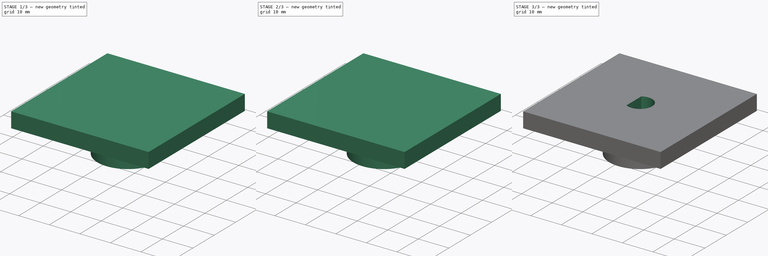
[diagram: build sequence overview — one tinted view per stage of 3, left to right]
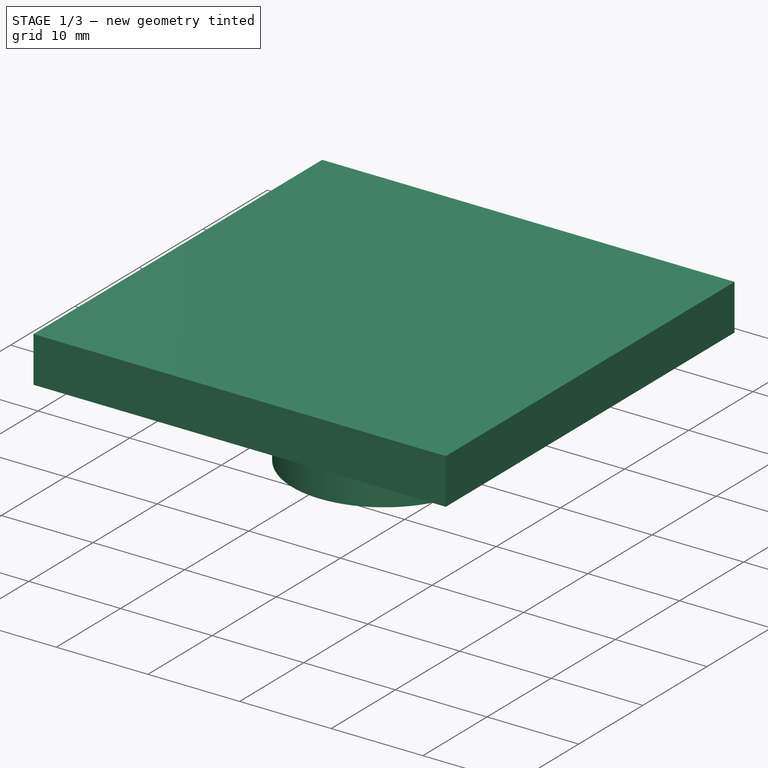
[diagram: stage 1 of 3 — iso view after this stage's code; geometry added in this stage tinted green]
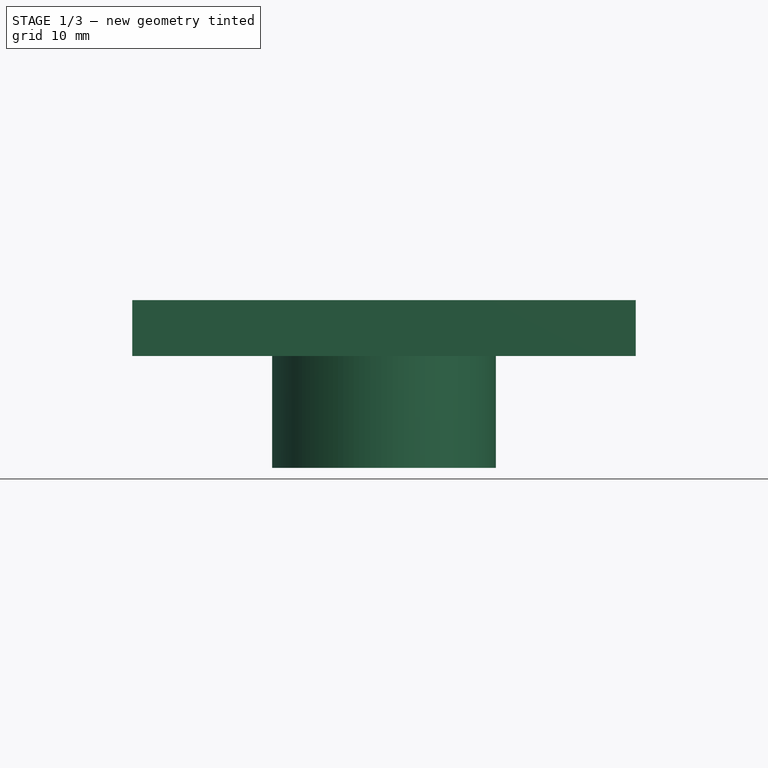
[diagram: stage 1 of 3 — front view after this stage's code; geometry added in this stage tinted green]
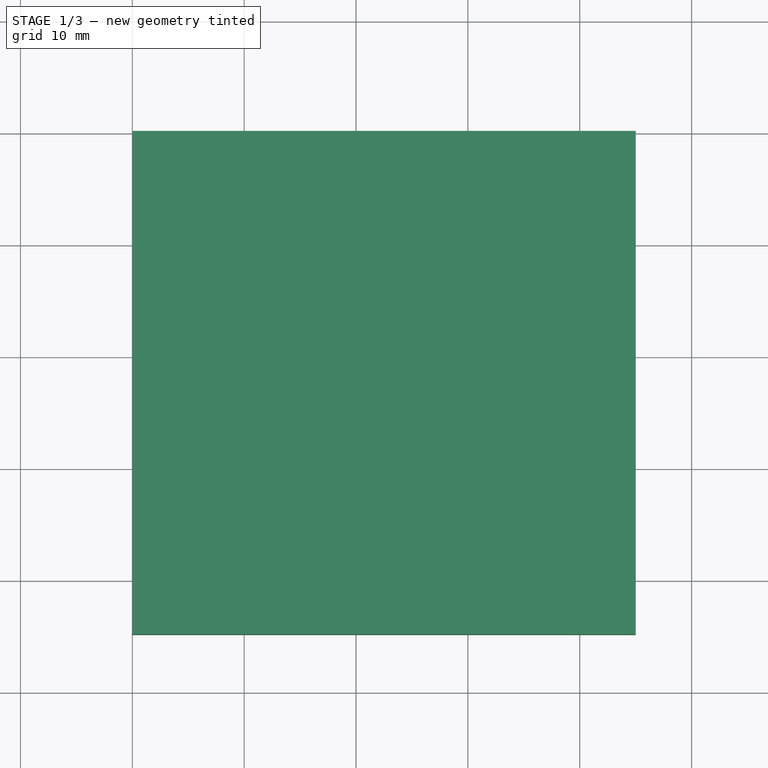
[diagram: stage 1 of 3 — top view after this stage's code; geometry added in this stage tinted green]
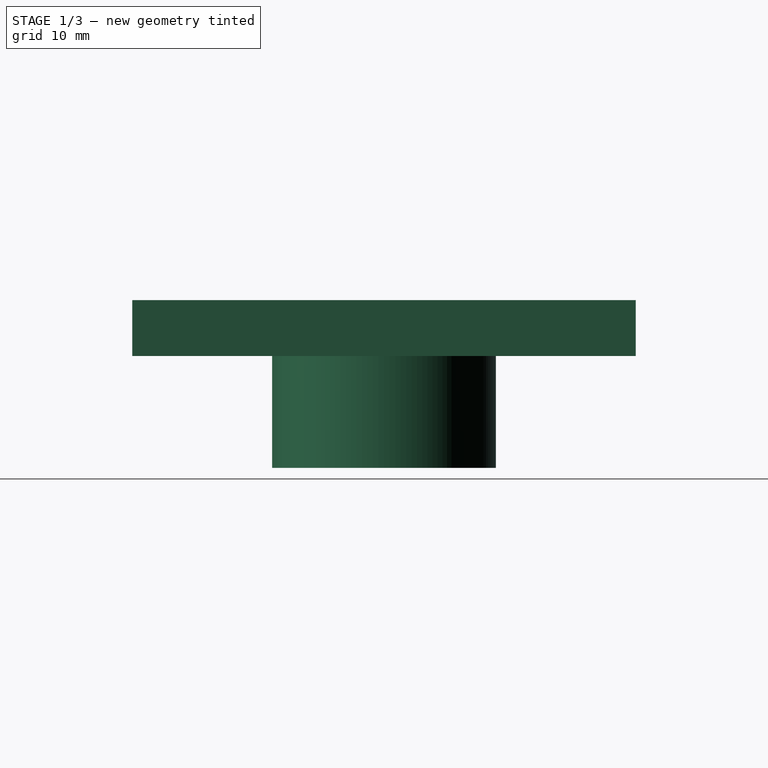
[diagram: stage 1 of 3 — right view after this stage's code; geometry added in this stage tinted green]
FCSTD DOCUMENT  (FreeCAD 0.19R24291 (Git))
Label: hlinikovy_profil_verze_2
License: All rights reserved
LicenseURL: http://en.wikipedia.org/wiki/All_rights_reserved
objects: Sketcher::SketchObject×5, Part::Extrusion×2, PartDesign::Pad×1, PartDesign::ShapeBinder×1, PartDesign::Body×1, Part::Fuse×1, Part::Cut×1
note: 13 computed .brp shape members not serialized (recipe doc carries the construction recipe); baked Part::Feature solids carry a one-line shape summary decoded from their .brp

FEATURE [Sketcher::SketchObject] Sketch  label="Zakladna"
  FullyConstrained = true
  MapMode = 5
  Support = -> [XY_Plane]
  sketch-geometry (4):
    g0: LineSegment StartX=0 StartY=0 StartZ=0 EndX=45 EndY=0 EndZ=0
    g1: LineSegment StartX=45 StartY=0 StartZ=0 EndX=45 EndY=-45 EndZ=0
    g2: LineSegment StartX=45 StartY=-45 StartZ=0 EndX=0 EndY=-45 EndZ=0
    g3: LineSegment StartX=0 StartY=-45 StartZ=0 EndX=0 EndY=0 EndZ=0
  constraints (11):
    c: Coincident(g0,g1)
    c: Coincident(g1,g2)
    c: Coincident(g2,g3)
    c: Coincident(g3,g0)
    c: Horizontal(g0)
    c: Horizontal(g2)
    c: Vertical(g1)
    c: Vertical(g3)
    c: Coincident(g0,g-1)
    c: DistanceX(g0,g0) = 45
    c: DistanceY(g1,g1) = 45
FEATURE [PartDesign::Pad] Pad
  Direction = (1,1,1)
  Length = 5
  Length2 = 100
  Profile = -> Sketch
  Type = 0
FEATURE [Sketcher::SketchObject] Sketch001
  ExternalGeometry = -> [Pad]
  FullyConstrained = true
  MapMode = 5
  Placement = pos=(0,0,5) rot=(0,0,1;0rad)
  Support = -> [Pad]
  sketch-geometry (22):
    g0: LineSegment StartX=4 StartY=-2 StartZ=0 EndX=7.5 EndY=-2 EndZ=0
    g1: LineSegment StartX=7.5 StartY=-2 StartZ=0 EndX=7.5 EndY=-7.5 EndZ=0
    g2: LineSegment StartX=7.5 StartY=-7.5 StartZ=0 EndX=2 EndY=-7.5 EndZ=0
    g3: LineSegment StartX=2 StartY=-7.5 StartZ=0 EndX=2 EndY=-4 EndZ=0
    g4: ArcOfCircle CenterX=4 CenterY=-4 CenterZ=0 NormalX=0 NormalY=0 NormalZ=1 AngleXU=0 Radius=2 StartAngle=1.5708 EndAngle=3.14159
    g5: LineSegment StartX=20 StartY=0 StartZ=0 EndX=20 EndY=-45 EndZ=0
    g6: LineSegment StartX=43 StartY=-7.5 StartZ=0 EndX=43 EndY=-4 EndZ=0
    g7: ArcOfCircle CenterX=41 CenterY=-4 CenterZ=0 NormalX=0 NormalY=0 NormalZ=1 AngleXU=0 Radius=2 StartAngle=0 EndAngle=1.5708
    g8: LineSegment StartX=37.5 StartY=-2 StartZ=0 EndX=37.5 EndY=-7.5 EndZ=0
    g9: LineSegment StartX=37.5 StartY=-7.5 StartZ=0 EndX=43 EndY=-7.5 EndZ=0
    g10: LineSegment StartX=41 StartY=-2 StartZ=0 EndX=37.5 EndY=-2 EndZ=0
    g11: LineSegment StartX=0 StartY=-20 StartZ=0 EndX=45 EndY=-20 EndZ=0
    g12: LineSegment StartX=7.5 StartY=-37.5 StartZ=0 EndX=2 EndY=-37.5 EndZ=0
    g13: LineSegment StartX=2 StartY=-37.5 StartZ=0 EndX=2 EndY=-41 EndZ=0
    g14: ArcOfCircle CenterX=4 CenterY=-41 CenterZ=0 NormalX=0 NormalY=0 NormalZ=1 AngleXU=0 Radius=2 StartAngle=3.14159 EndAngle=4.71239
    g15: LineSegment StartX=7.5 StartY=-43 StartZ=0 EndX=7.5 EndY=-37.5 EndZ=0
    g16: LineSegment StartX=4 StartY=-43 StartZ=0 EndX=7.5 EndY=-43 EndZ=0
    g17: LineSegment StartX=37.5 StartY=-43 StartZ=0 EndX=37.5 EndY=-37.5 EndZ=0
    g18: LineSegment StartX=41 StartY=-43 StartZ=0 EndX=37.5 EndY=-43 EndZ=0
    g19: LineSegment StartX=37.5 StartY=-37.5 StartZ=0 EndX=43 EndY=-37.5 EndZ=0
    g20: ArcOfCircle CenterX=41 CenterY=-41 CenterZ=0 NormalX=0 NormalY=0 NormalZ=1 AngleXU=0 Radius=2 StartAngle=4.71239 EndAngle=6.28319
    g21: LineSegment StartX=43 StartY=-37.5 StartZ=0 EndX=43 EndY=-41 EndZ=0
  constraints (64):
    c: Coincident(g0,g1)
    c: Coincident(g1,g2)
    c: Coincident(g2,g3)
    c: Horizontal(g0)
    c: Horizontal(g2)
    c: Vertical(g1)
    c: Vertical(g3)
    c: DistanceY(g1,g1) = 5.5
    c: Tangent(g0,g4) = 1.5708
    c: Tangent(g3,g4) = 1.5708
    c: Radius(g4) = 2
    c: DistanceX(g-1,g3) = 2
    c: DistanceY(g0,g-1) = 2
    c: DistanceX(g2,g2) = 5.5
    c: Vertical(g5)
    c: PointOnObject(g5,g-1)
    c: PointOnObject(g5,g-3)
    c: DistanceX(g-3,g5) = 20
    c: Coincident(g10,g8)
    c: Coincident(g8,g9)
    c: Coincident(g9,g6)
    c: Horizontal(g10)
    c: Horizontal(g9)
    c: Vertical(g8)
    c: Vertical(g6)
    c: Tangent(g10,g7) = -1.5708
    c: Tangent(g6,g7) = -1.5708
    c: Radius(g7) = 2
    c: DistanceX(g6,g-3) = 2
    c: DistanceY(g8,g5) = 2
    c: DistanceY(g8,g8) = 5.5
    c: DistanceX(g9,g9) = 5.5
    c: PointOnObject(g11,g-2)
    c: Horizontal(g11)
    c: PointOnObject(g11,g-4)
    c: DistanceY(g11,g-4) = 20
    c: Coincident(g16,g15)
    c: Coincident(g15,g12)
    c: Coincident(g12,g13)
    c: Horizontal(g16)
    c: Horizontal(g12)
    c: Vertical(g15)
    c: Vertical(g13)
    c: Tangent(g16,g14) = -1.5708
    c: Tangent(g13,g14) = -1.5708
    c: Radius(g14) = 2
    c: Coincident(g18,g17)
    c: Coincident(g17,g19)
    c: Coincident(g19,g21)
    c: Horizontal(g18)
    c: Horizontal(g19)
    c: Vertical(g17)
    c: Vertical(g21)
    c: Tangent(g18,g20) = 1.5708
    c: Tangent(g21,g20) = 1.5708
    c: Radius(g20) = 2
    c: DistanceX(g12,g12) = 5.5
    c: DistanceY(g15,g15) = 5.5
    c: DistanceY(g-3,g15) = 2
    c: DistanceX(g-3,g12) = 2
    c: DistanceX(g19,g19) = 5.5
    c: DistanceY(g17,g17) = 5.5
    c: DistanceX(g19,g-4) = 2
    c: DistanceY(g-4,g18) = 2
FEATURE [Sketcher::SketchObject] Sketch003  label="Objimka"
  FullyConstrained = true
  MapMode = 5
  Placement = pos=(0,0,0) rot=(1,0,0;3.14159rad)
  sketch-geometry (1):
    g0: Circle CenterX=22.5 CenterY=22.5 CenterZ=0 NormalX=0 NormalY=0 NormalZ=1 AngleXU=0 Radius=10
  constraints (3):
    c: DistanceX(g-1,g0) = 22.5
    c: DistanceY(g-1,g0) = 22.5
    c: Radius(g0) = 10
FEATURE [Sketcher::SketchObject] Sketch007  label="Dira_1"
  FullyConstrained = true
  MapMode = 5
  Placement = pos=(0,0,5) rot=(0,0,1;0rad)
  sketch-geometry (1):
    g0: Circle CenterX=22.5 CenterY=-22.5 CenterZ=0 NormalX=0 NormalY=0 NormalZ=1 AngleXU=0 Radius=4
  constraints (3):
    c: Radius(g0) = 4
    c: DistanceY(g0,g-1) = 22.5
    c: DistanceX(g-1,g0) = 22.5
FEATURE [Part::Extrusion] Extrude  label="Valec"
  Base = -> Sketch003
  Dir = (0,0,-1)
  DirMode = 2
  FaceMakerClass = Part::FaceMakerBullseye
  LengthFwd = 10
  LengthRev = 0
  Solid = true
  Symmetric = false
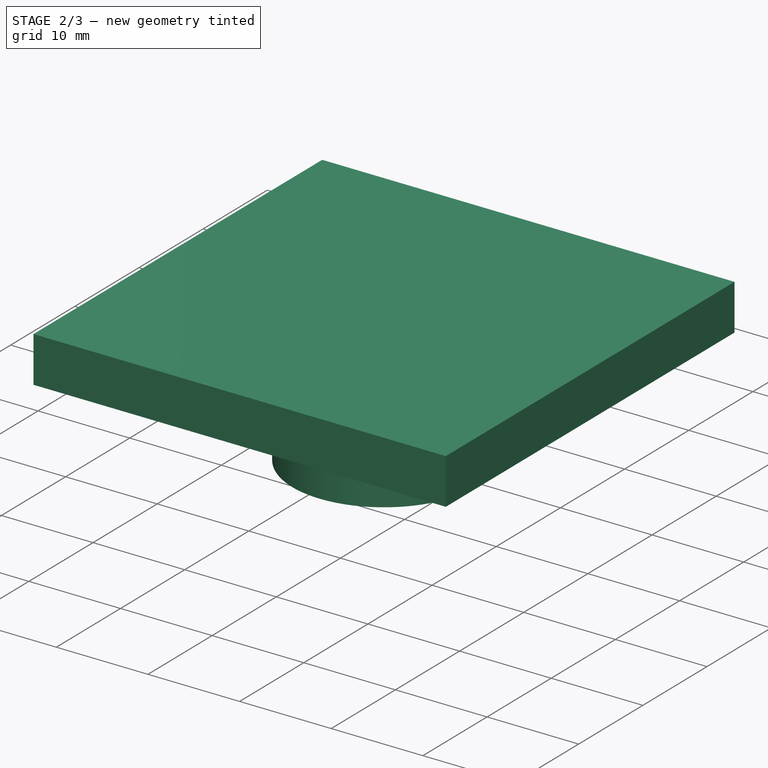
[diagram: stage 2 of 3 — iso view after this stage's code; geometry added in this stage tinted green]
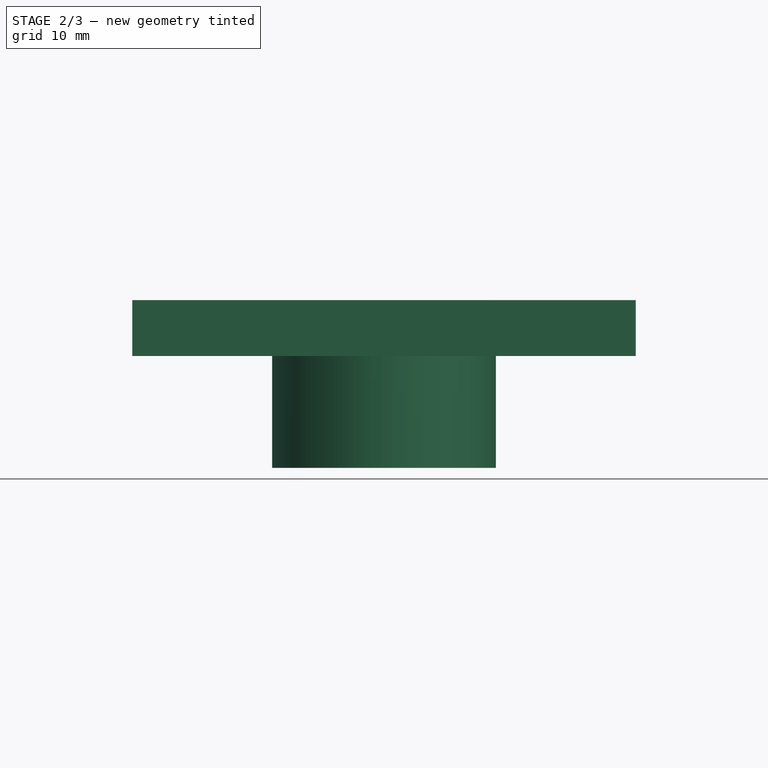
[diagram: stage 2 of 3 — front view after this stage's code; geometry added in this stage tinted green]
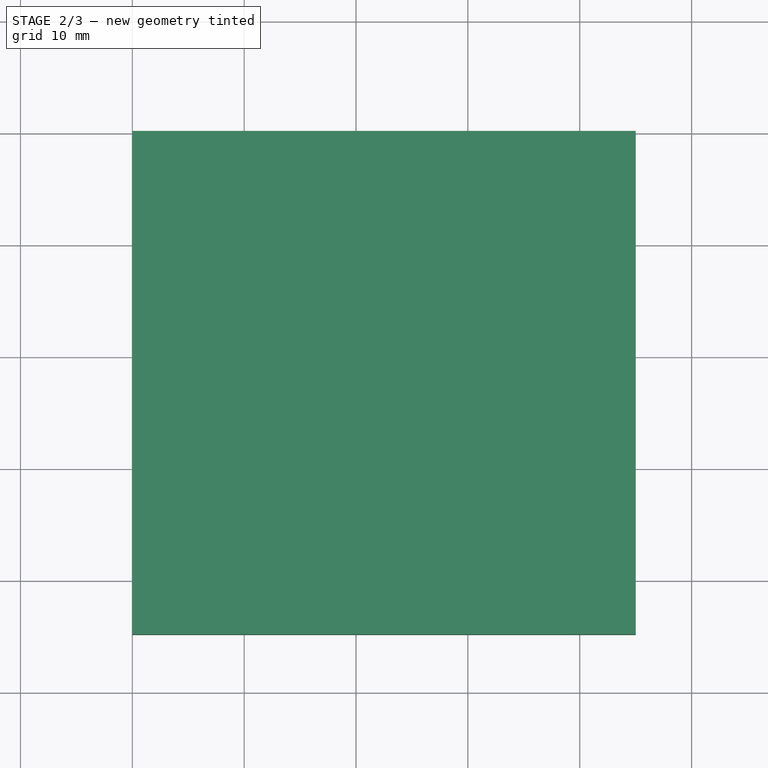
[diagram: stage 2 of 3 — top view after this stage's code; geometry added in this stage tinted green]
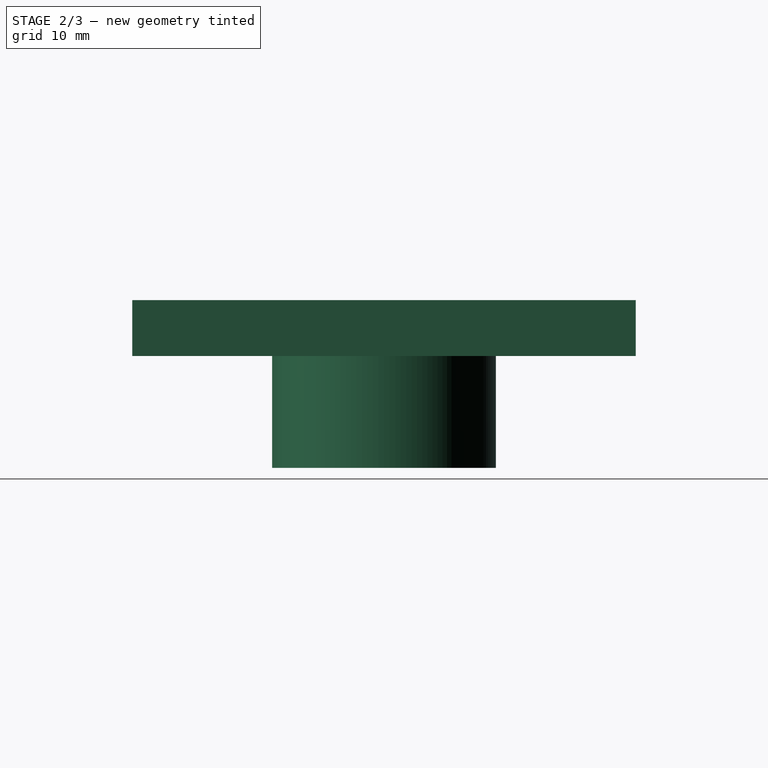
[diagram: stage 2 of 3 — right view after this stage's code; geometry added in this stage tinted green]
FEATURE [Part::Fuse] Fusion
  Base = -> Body
  Tool = -> Extrude
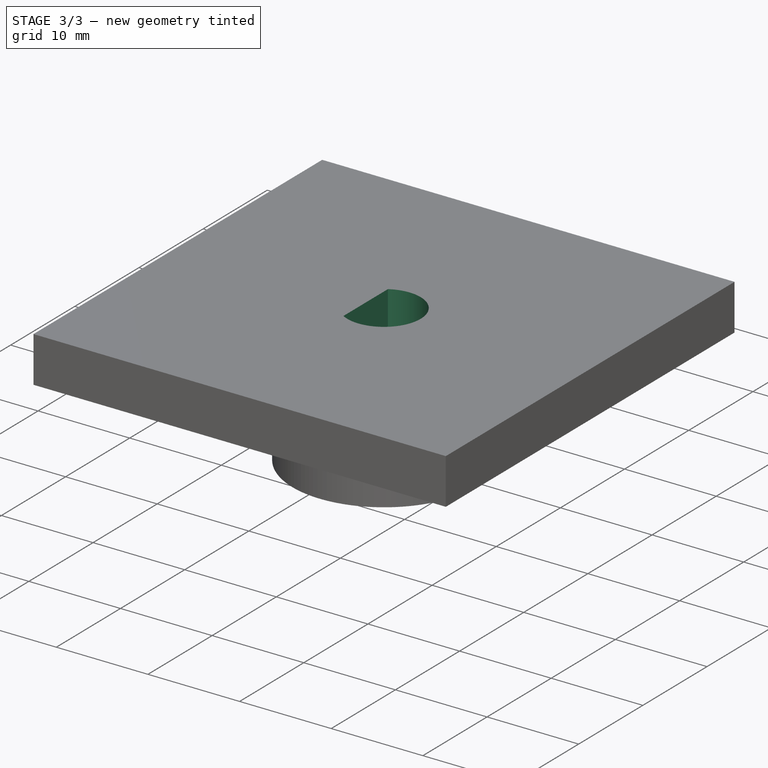
[diagram: stage 3 of 3 — iso view after this stage's code; geometry added in this stage tinted green]
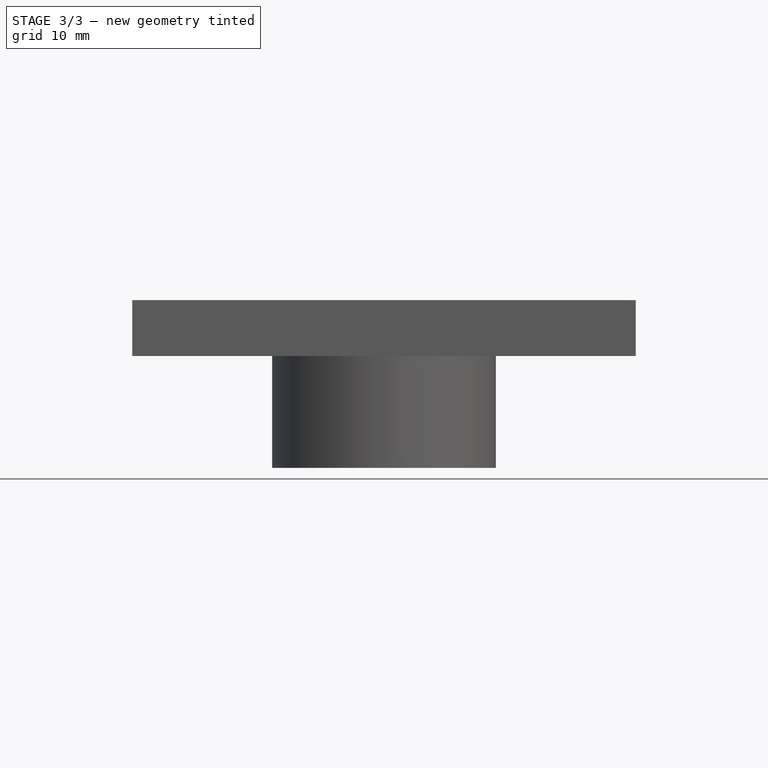
[diagram: stage 3 of 3 — front view after this stage's code; geometry added in this stage tinted green]
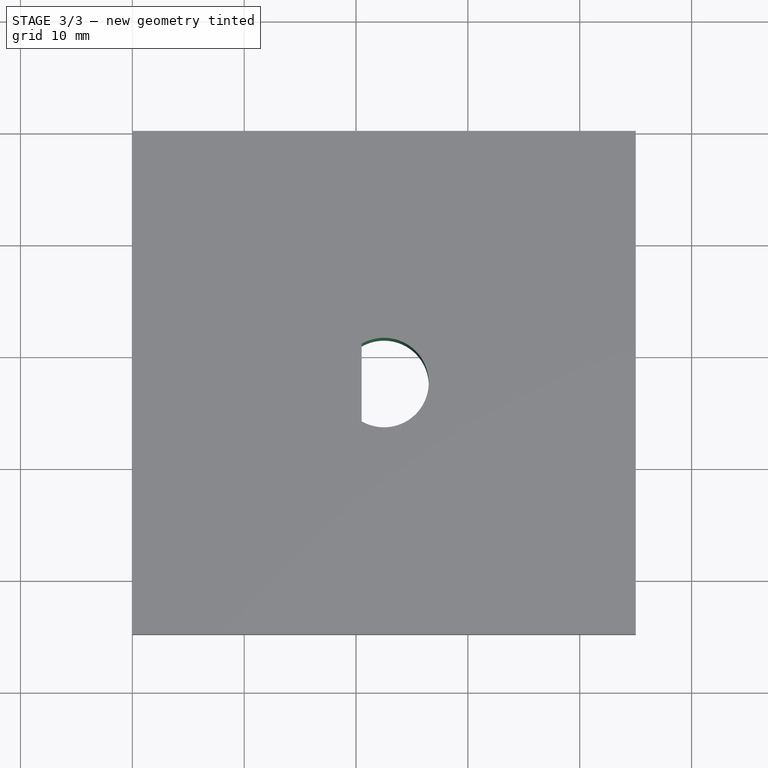
[diagram: stage 3 of 3 — top view after this stage's code; geometry added in this stage tinted green]
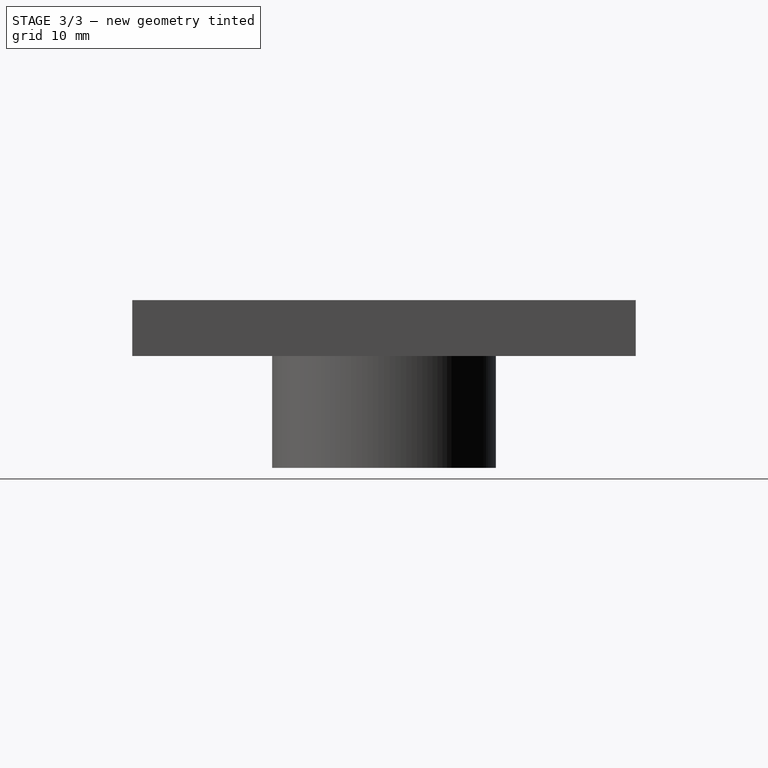
[diagram: stage 3 of 3 — right view after this stage's code; geometry added in this stage tinted green]
FEATURE [PartDesign::ShapeBinder] CopyExtrude
  Placement = pos=(0,0,-10) rot=(0,0,1;0rad)
  TraceSupport = false
FEATURE [Sketcher::SketchObject] Sketch008  label="DiraNaHridel"
  FullyConstrained = true
  MapMode = 5
  Placement = pos=(0,0,-10) rot=(1,0,0;3.14159rad)
  Support = -> [CopyExtrude]
  sketch-geometry (2):
    g0: ArcOfCircle CenterX=22.5 CenterY=22.5 CenterZ=0 NormalX=0 NormalY=0 NormalZ=1 AngleXU=0 Radius=4 StartAngle=4.18879 EndAngle=8.37758
    g1: LineSegment StartX=20.5 StartY=25.9641 StartZ=0 EndX=20.5 EndY=19.0359 EndZ=0
  constraints (7):
    c: DistanceX(g-1,g0) = 22.5
    c: DistanceY(g-1,g0) = 22.5
    c: Radius(g0) = 4
    c: Vertical(g1)
    c: DistanceX(g1,g0) = 2
    c: Coincident(g0,g1)
    c: Coincident(g0,g1)
FEATURE [PartDesign::Body] Body
  Group = -> [Sketch,Pad,Sketch001,Sketch003,Sketch007,CopyExtrude,Sketch008]
  Origin = -> Origin
  Tip = -> Pad
FEATURE [Part::Extrusion] Extrude002
  Base = -> Sketch008
  Dir = (0,0,-1)
  DirMode = 2
  FaceMakerClass = Part::FaceMakerBullseye
  LengthFwd = 20
  LengthRev = 0
  Reversed = true
  Solid = true
  Symmetric = false
FEATURE [Part::Cut] Cut  label="KoncovkaALProfilu"
  Base = -> Fusion
  Tool = -> Extrude002
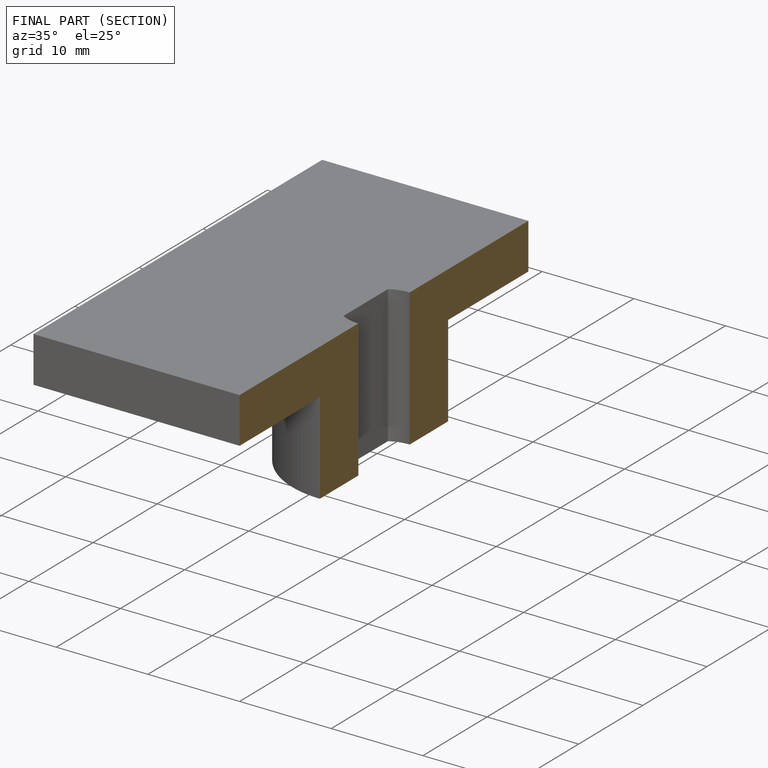
[diagram: finished part — half-section view (interior)]
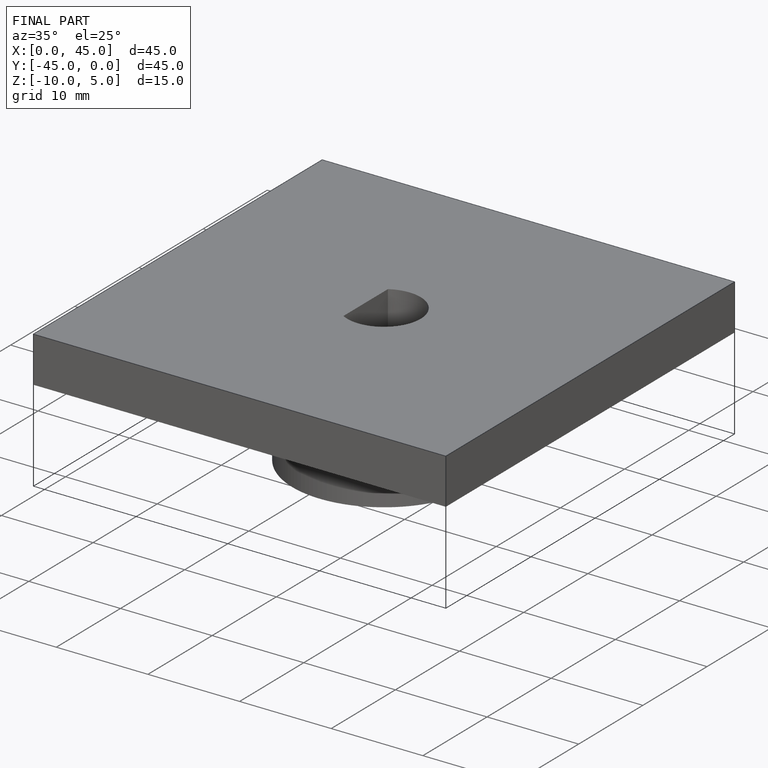
[diagram: finished part — iso view with bounding-box wireframe]
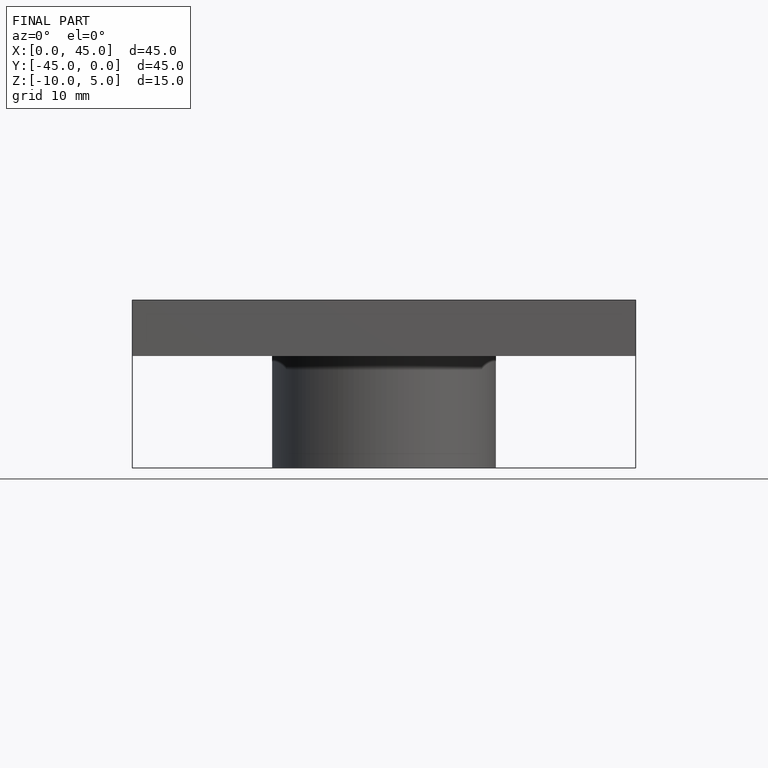
[diagram: finished part — front view with bounding-box wireframe]
